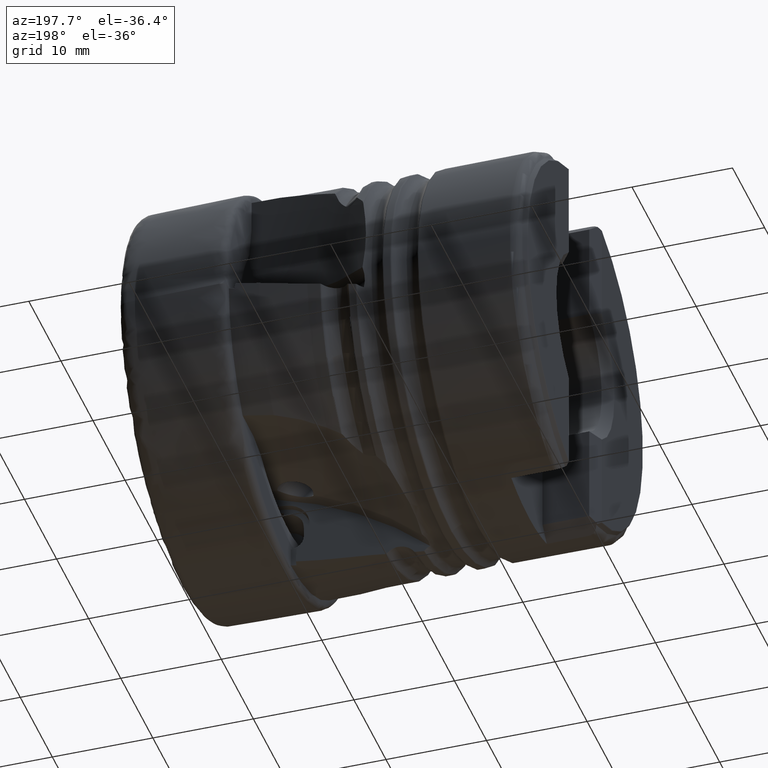
[diagram: clean part render]
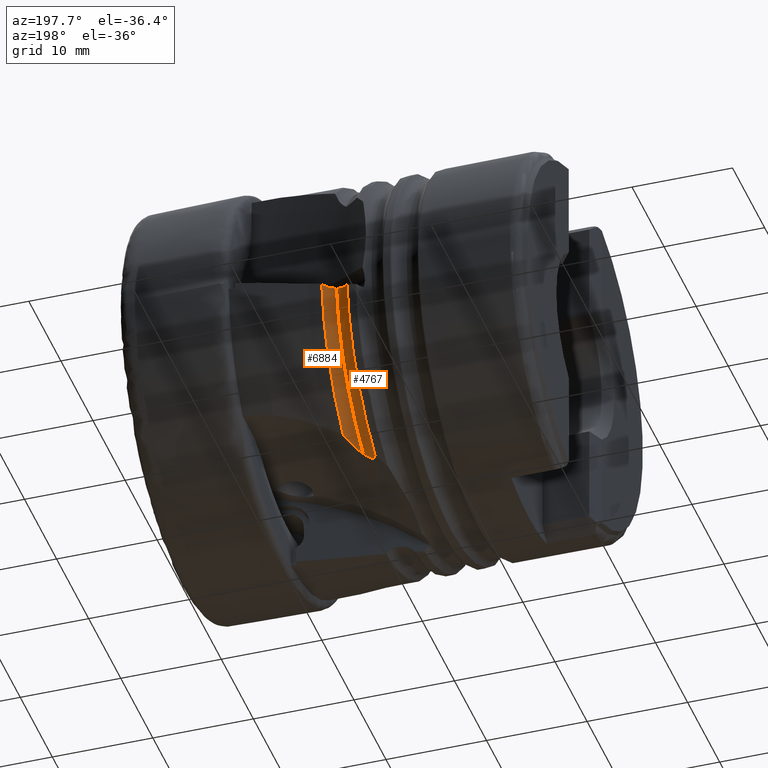
[diagram: same view with one multi-face feature highlighted, each face labeled with its STEP entity id]
A machine part, auxiliary view. The highlighted faces form ONE feature: a constant-radius fillet chain: 2 tangent blend faces with common blend radius 1.5 mm. The faces share edges in the B-rep.
Their STEP definitions:
[1] entity #4767 (Torus):
#272 = B_SPLINE_CURVE_WITH_KNOTS ( 'NONE', 3,
 ( #1393, #1392, #1399, #1400, #1401, #1402, #1403, #1404, #1405, #1406, #1407, #1408 ),
 .UNSPECIFIED., .F., .F.,
 ( 4, 2, 2, 2, 2, 4 ),
 ( 0.002706890319982137600, 0.003134973580077015200, 0.003563056840171892800, 0.003777098470219331800, 0.003991140100266770400, 0.004419223360361644900 ),
 .UNSPECIFIED. ) ;
#365 = B_SPLINE_CURVE_WITH_KNOTS ( 'NONE', 3,
 ( #2068, #2069, #2074, #2075, #2076, #2077 ),
 .UNSPECIFIED., .F., .F.,
 ( 4, 2, 4 ),
 ( 0.001495129131990283500, 0.002231497823915352400, 0.002967866515840421600 ),
 .UNSPECIFIED. ) ;
#1392 = CARTESIAN_POINT ( 'NONE',  ( -20.54405563563723900, 9.759087458154571200, -15.42189284464748200 ) ) ;
#1393 = CARTESIAN_POINT ( 'NONE',  ( -20.44999999999996000, 9.851557288825311800, -15.36259479987001300 ) ) ;
#1399 = CARTESIAN_POINT ( 'NONE',  ( -20.64579802709161900, 9.673935222437512100, -15.48533349344564200 ) ) ;
#1400 = CARTESIAN_POINT ( 'NONE',  ( -20.86854850271575400, 9.544145432051589500, -15.62030201012387600 ) ) ;
#1401 = CARTESIAN_POINT ( 'NONE',  ( -20.99129753447816400, 9.498806311163830800, -15.69292996623522800 ) ) ;
#1402 = CARTESIAN_POINT ( 'NONE',  ( -21.18325489488353200, 9.508182161345786200, -15.79902936166471900 ) ) ;
#1403 = CARTESIAN_POINT ( 'NONE',  ( -21.24714440434087600, 9.524999251713707000, -15.83303593303399600 ) ) ;
#1404 = CARTESIAN_POINT ( 'NONE',  ( -21.36566588452921400, 9.585094274316940500, -15.89305772828249300 ) ) ;
#1405 = CARTESIAN_POINT ( 'NONE',  ( -21.42042339920323400, 9.628238646429965200, -15.91914739939060500 ) ) ;
#1406 = CARTESIAN_POINT ( 'NONE',  ( -21.56440734458933400, 9.778813949958154300, -15.98349529738116100 ) ) ;
#1407 = CARTESIAN_POINT ( 'NONE',  ( -21.63645190577784700, 9.906443509560102000, -16.00965801246728800 ) ) ;
#1408 = CARTESIAN_POINT ( 'NONE',  ( -21.69392989822397100, 10.04008066438039900, -16.02659117040776900 ) ) ;
#1520 = AXIS2_PLACEMENT_3D ( 'NONE', #2287, #2288, #2289 ) ;
#1826 = CIRCLE ( 'NONE', #1520, 18.91176470588235500 ) ;
#2068 = CARTESIAN_POINT ( 'NONE',  ( -20.45000000000000600, 18.16766198911309600, -1.731634444487411700 ) ) ;
#2069 = CARTESIAN_POINT ( 'NONE',  ( -20.69156459307992100, 18.16276797779218900, -1.782980583813697000 ) ) ;
#2074 = CARTESIAN_POINT ( 'NONE',  ( -20.93454237052838700, 18.21747837965082400, -1.834627104750367100 ) ) ;
#2075 = CARTESIAN_POINT ( 'NONE',  ( -21.36615168640427600, 18.43714236169256500, -1.926368496917698600 ) ) ;
#2076 = CARTESIAN_POINT ( 'NONE',  ( -21.55475923292254600, 18.60158611545092500, -1.966458268510643300 ) ) ;
#2077 = CARTESIAN_POINT ( 'NONE',  ( -21.69392989822397100, 18.80613381271833600, -1.996039906612445000 ) ) ;
#2287 = CARTESIAN_POINT ( 'NONE',  ( -21.69392989822397100, 0.0000000000000000000, 0.0000000000000000000 ) ) ;
#2288 = DIRECTION ( 'NONE',  ( 1.000000000000000000, -0.0000000000000000000, -0.0000000000000000000 ) ) ;
#2289 = DIRECTION ( 'NONE',  ( 0.0000000000000000000, 0.0000000000000000000, -1.000000000000000000 ) ) ;
#3842 = CARTESIAN_POINT ( 'NONE',  ( -20.45000000000000600, 0.0000000000000000000, 0.0000000000000000000 ) ) ;
#3843 = DIRECTION ( 'NONE',  ( 1.000000000000000000, -0.0000000000000000000, -0.0000000000000000000 ) ) ;
#3844 = DIRECTION ( 'NONE',  ( 0.0000000000000000000, 0.0000000000000000000, -1.000000000000000000 ) ) ;
#3860 = EDGE_CURVE ( 'NONE', #5796, #5814, #6102, .T. ) ;
#4569 = AXIS2_PLACEMENT_3D ( 'NONE', #5476, #5473, #5478 ) ;
#4674 = AXIS2_PLACEMENT_3D ( 'NONE', #3842, #3843, #3844 ) ;
#4767 = ADVANCED_FACE ( 'NONE', ( #7707 ), #7706, .F. ) ;
#4845 = VERTEX_POINT ( 'NONE', #5760 ) ;
#4892 = VERTEX_POINT ( 'NONE', #5847 ) ;
#5473 = DIRECTION ( 'NONE',  ( 1.000000000000000000, -0.0000000000000000000, -0.0000000000000000000 ) ) ;
#5476 = CARTESIAN_POINT ( 'NONE',  ( -20.45000000000000600, 0.0000000000000000000, 0.0000000000000000000 ) ) ;
#5478 = DIRECTION ( 'NONE',  ( 0.0000000000000000000, 0.0000000000000000000, -1.000000000000000000 ) ) ;
#5760 = CARTESIAN_POINT ( 'NONE',  ( -21.69392989822397100, 18.80613381271833600, -1.996039906612445000 ) ) ;
#5796 = VERTEX_POINT ( 'NONE', #5880 ) ;
#5814 = VERTEX_POINT ( 'NONE', #5888 ) ;
#5847 = CARTESIAN_POINT ( 'NONE',  ( -21.69392989822397100, 10.04008066438039900, -16.02659117040776900 ) ) ;
#5880 = CARTESIAN_POINT ( 'NONE',  ( -20.44999999999996000, 9.851557288825311800, -15.36259479987001300 ) ) ;
#5888 = CARTESIAN_POINT ( 'NONE',  ( -20.45000000000000600, 18.16766198911309600, -1.731634444487411700 ) ) ;
#6102 = CIRCLE ( 'NONE', #4674, 18.25000000000001100 ) ;
#6277 = ORIENTED_EDGE ( 'NONE', *, *, #3860, .F. ) ;
#6278 = ORIENTED_EDGE ( 'NONE', *, *, #8330, .T. ) ;
#6279 = ORIENTED_EDGE ( 'NONE', *, *, #8433, .T. ) ;
#6280 = ORIENTED_EDGE ( 'NONE', *, *, #8376, .F. ) ;
#7706 = TOROIDAL_SURFACE ( 'NONE', #4569, 19.75000000000000700, 1.499999999999999100 ) ;
#7707 = FACE_OUTER_BOUND ( 'NONE', #7991, .T. ) ;
#7991 = EDGE_LOOP ( 'NONE', ( #6277, #6278, #6279, #6280 ) ) ;
#8330 = EDGE_CURVE ( 'NONE', #5796, #4892, #272, .T. ) ;
#8376 = EDGE_CURVE ( 'NONE', #5814, #4845, #365, .T. ) ;
#8433 = EDGE_CURVE ( 'NONE', #4892, #4845, #1826, .T. ) ;
[2] entity #6884 (Torus):
#315 = B_SPLINE_CURVE_WITH_KNOTS ( 'NONE', 3,
 ( #3825, #3828, #3836, #3837, #3838, #3839, #3840, #3841 ),
 .UNSPECIFIED., .F., .F.,
 ( 4, 2, 2, 4 ),
 ( 6.790565846404226000E-007, 0.001353784688283385800, 0.002030337504132761700, 0.002706890319982137600 ),
 .UNSPECIFIED. ) ;
#336 = B_SPLINE_CURVE_WITH_KNOTS ( 'NONE', 3,
 ( #5317, #5318, #5322, #5323, #5324, #5325, #5326, #5327, #5328, #5329 ),
 .UNSPECIFIED., .F., .F.,
 ( 4, 2, 2, 2, 4 ),
 ( 3.586996496291495500E-007, 0.0003740513077347927000, 0.0007477439158199562600, 0.001121436523905120000, 0.001495129131990283500 ),
 .UNSPECIFIED. ) ;
#2520 = ORIENTED_EDGE ( 'NONE', *, *, #3859, .T. ) ;
#2534 = ORIENTED_EDGE ( 'NONE', *, *, #3873, .F. ) ;
#3075 = TOROIDAL_SURFACE ( 'NONE', #7850, 19.75000000000000700, 1.499999999999999100 ) ;
#3076 = FACE_OUTER_BOUND ( 'NONE', #8127, .T. ) ;
#3345 = CARTESIAN_POINT ( 'NONE',  ( -20.45000000000000600, 0.0000000000000000000, 0.0000000000000000000 ) ) ;
#3347 = DIRECTION ( 'NONE',  ( 1.000000000000000000, -0.0000000000000000000, -0.0000000000000000000 ) ) ;
#3348 = DIRECTION ( 'NONE',  ( 0.0000000000000000000, 0.0000000000000000000, -1.000000000000000000 ) ) ;
#3825 = CARTESIAN_POINT ( 'NONE',  ( -19.20607010177602800, 12.09972647482135800, -14.53449220045768300 ) ) ;
#3828 = CARTESIAN_POINT ( 'NONE',  ( -19.33893159288749400, 11.67292895472835200, -14.63325048365396900 ) ) ;
#3836 = CARTESIAN_POINT ( 'NONE',  ( -19.50910949383871400, 11.27056840277137100, -14.74946759130434500 ) ) ;
#3837 = CARTESIAN_POINT ( 'NONE',  ( -19.81430487190080600, 10.70147671897029800, -14.95237595764108800 ) ) ;
#3838 = CARTESIAN_POINT ( 'NONE',  ( -19.92459111974782000, 10.51766451297033600, -15.02485775817627800 ) ) ;
#3839 = CARTESIAN_POINT ( 'NONE',  ( -20.16824795714901000, 10.16600511185666100, -15.18314832049502500 ) ) ;
#3840 = CARTESIAN_POINT ( 'NONE',  ( -20.30135226936272000, 9.997698776132114800, -15.26887878032823100 ) ) ;
#3841 = CARTESIAN_POINT ( 'NONE',  ( -20.44999999999996000, 9.851557288825311800, -15.36259479987001300 ) ) ;
#3842 = CARTESIAN_POINT ( 'NONE',  ( -20.45000000000000600, 0.0000000000000000000, 0.0000000000000000000 ) ) ;
#3843 = DIRECTION ( 'NONE',  ( 1.000000000000000000, -0.0000000000000000000, -0.0000000000000000000 ) ) ;
#3844 = DIRECTION ( 'NONE',  ( 0.0000000000000000000, 0.0000000000000000000, -1.000000000000000000 ) ) ;
#3859 = EDGE_CURVE ( 'NONE', #5798, #5796, #315, .T. ) ;
#3860 = EDGE_CURVE ( 'NONE', #5796, #5814, #6102, .T. ) ;
#3873 = EDGE_CURVE ( 'NONE', #5798, #5811, #6111, .T. ) ;
#4027 = EDGE_CURVE ( 'NONE', #5811, #5814, #336, .T. ) ;
#4140 = CARTESIAN_POINT ( 'NONE',  ( -19.20607010177603900, 0.0000000000000000000, 0.0000000000000000000 ) ) ;
#4141 = DIRECTION ( 'NONE',  ( 1.000000000000000000, -0.0000000000000000000, -0.0000000000000000000 ) ) ;
#4142 = DIRECTION ( 'NONE',  ( 0.0000000000000000000, 0.0000000000000000000, -1.000000000000000000 ) ) ;
#4665 = AXIS2_PLACEMENT_3D ( 'NONE', #4140, #4141, #4142 ) ;
#4674 = AXIS2_PLACEMENT_3D ( 'NONE', #3842, #3843, #3844 ) ;
#5317 = CARTESIAN_POINT ( 'NONE',  ( -19.20607010177604600, 18.85476288379073800, -1.467228982362391900 ) ) ;
#5318 = CARTESIAN_POINT ( 'NONE',  ( -19.27553398344755900, 18.75021880102271500, -1.481993986210741200 ) ) ;
#5322 = CARTESIAN_POINT ( 'NONE',  ( -19.35595139814527600, 18.65645871038851700, -1.499087235377279900 ) ) ;
#5323 = CARTESIAN_POINT ( 'NONE',  ( -19.53754808105533100, 18.48937902667006500, -1.537686801907321100 ) ) ;
#5324 = CARTESIAN_POINT ( 'NONE',  ( -19.63957493579182400, 18.41605984940882500, -1.559373279348113900 ) ) ;
#5325 = CARTESIAN_POINT ( 'NONE',  ( -19.85423349024408100, 18.29779989960692200, -1.605000363615542500 ) ) ;
#5326 = CARTESIAN_POINT ( 'NONE',  ( -19.96928438371149600, 18.25128532570396100, -1.629455185948041100 ) ) ;
#5327 = CARTESIAN_POINT ( 'NONE',  ( -20.20675489777130800, 18.18740634669996900, -1.679931101914606600 ) ) ;
#5328 = CARTESIAN_POINT ( 'NONE',  ( -20.32741072672024900, 18.17014560346899200, -1.705577290061439000 ) ) ;
#5329 = CARTESIAN_POINT ( 'NONE',  ( -20.45000000000000600, 18.16766198911309600, -1.731634444487411700 ) ) ;
#5595 = ORIENTED_EDGE ( 'NONE', *, *, #3860, .T. ) ;
#5600 = ORIENTED_EDGE ( 'NONE', *, *, #4027, .F. ) ;
#5796 = VERTEX_POINT ( 'NONE', #5880 ) ;
#5798 = VERTEX_POINT ( 'NONE', #5881 ) ;
#5811 = VERTEX_POINT ( 'NONE', #5887 ) ;
#5814 = VERTEX_POINT ( 'NONE', #5888 ) ;
#5880 = CARTESIAN_POINT ( 'NONE',  ( -20.44999999999996000, 9.851557288825311800, -15.36259479987001300 ) ) ;
#5881 = CARTESIAN_POINT ( 'NONE',  ( -19.20607010177602800, 12.09972647482135800, -14.53449220045768300 ) ) ;
#5887 = CARTESIAN_POINT ( 'NONE',  ( -19.20607010177604600, 18.85476288379073800, -1.467228982362391900 ) ) ;
#5888 = CARTESIAN_POINT ( 'NONE',  ( -20.45000000000000600, 18.16766198911309600, -1.731634444487411700 ) ) ;
#6102 = CIRCLE ( 'NONE', #4674, 18.25000000000001100 ) ;
#6111 = CIRCLE ( 'NONE', #4665, 18.91176470588235500 ) ;
#6884 = ADVANCED_FACE ( 'NONE', ( #3076 ), #3075, .F. ) ;
#7850 = AXIS2_PLACEMENT_3D ( 'NONE', #3345, #3347, #3348 ) ;
#8127 = EDGE_LOOP ( 'NONE', ( #2520, #5595, #5600, #2534 ) ) ;